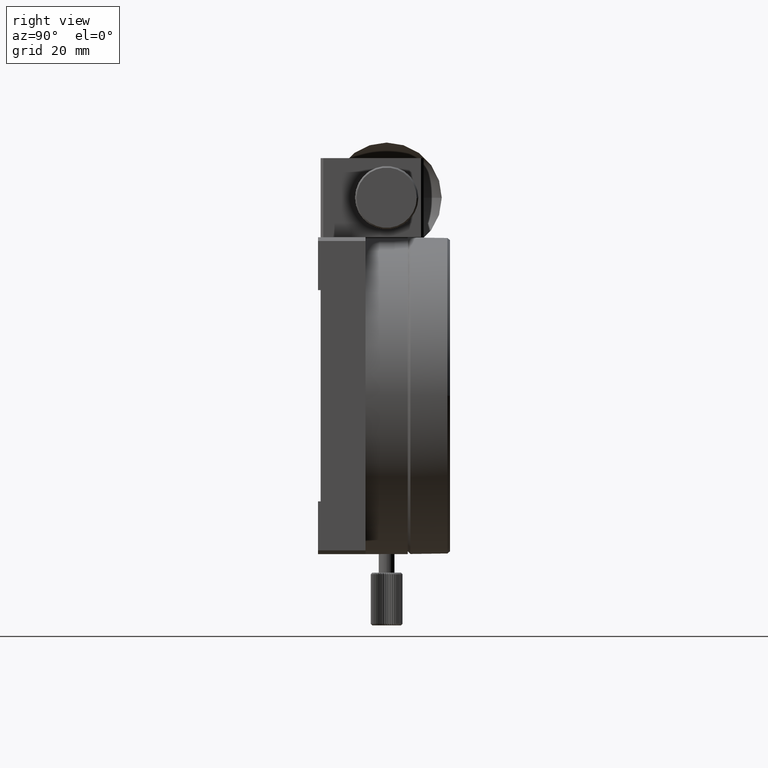
[diagram: clean part render]
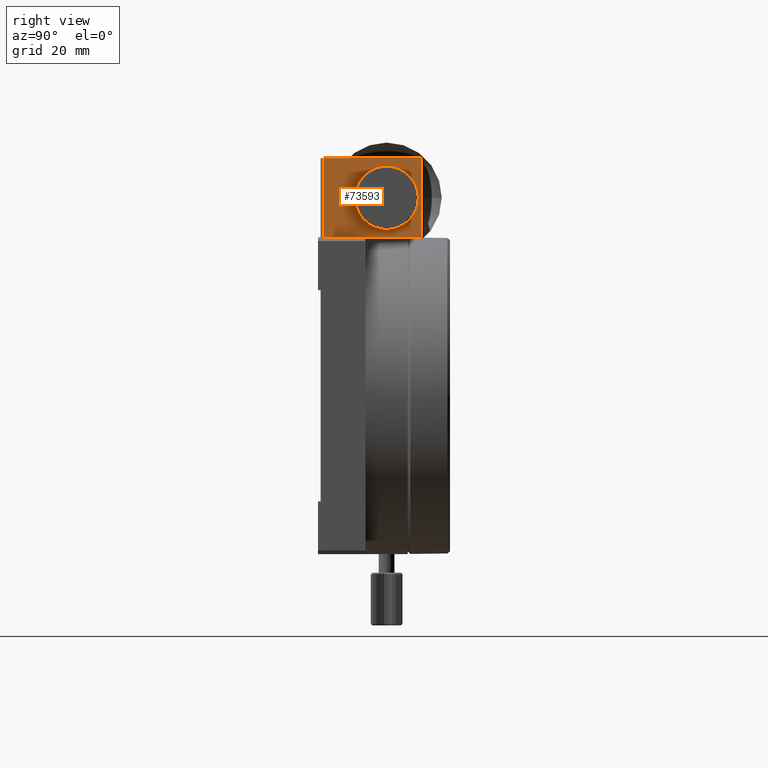
[diagram: same view with one face highlighted and labeled with its STEP entity id]
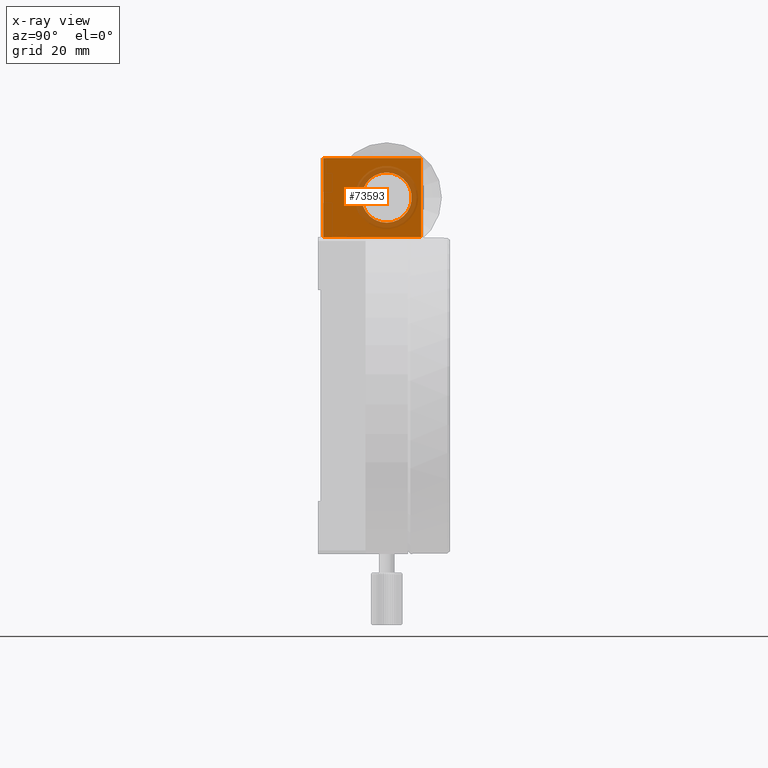
[diagram: x-ray of the same camera — body ghosted, the highlighted face saturated]
A machine part, right view. The second image highlights one B-rep face of the part: STEP entity #73593.
The next image is the same camera in x-ray: the body ghosted, the highlighted face saturated — about 20% of this face is hidden behind the body in this view.
In plain terms, the highlighted planar face has unit normal (-1, 0, 0).
Its self-contained STEP definition (entity closure, byte-faithful):
#237 = EDGE_CURVE ( 'NONE', #47978, #60277, #14985, .T. ) ;
#287 = ORIENTED_EDGE ( 'NONE', *, *, #237, .T. ) ;
#5360 = FACE_OUTER_BOUND ( 'NONE', #59711, .T. ) ;
#13822 = LINE ( 'NONE', #83446, #42437 ) ;
#14915 = LINE ( 'NONE', #50197, #46631 ) ;
#14985 = LINE ( 'NONE', #34995, #84955 ) ;
#15302 = EDGE_CURVE ( 'NONE', #33957, #47978, #14915, .T. ) ;
#16013 = CARTESIAN_POINT ( 'NONE',  ( 48.50000000000000000, 13.00000000000000178, 7.500000000000000000 ) ) ;
#19283 = DIRECTION ( 'NONE',  ( 0.000000000000000000, 0.000000000000000000, 1.000000000000000000 ) ) ;
#21228 = VERTEX_POINT ( 'NONE', #35631 ) ;
#24006 = LINE ( 'NONE', #36567, #51588 ) ;
#24529 = AXIS2_PLACEMENT_3D ( 'NONE', #40655, #90776, #19283 ) ;
#25157 = VERTEX_POINT ( 'NONE', #45331 ) ;
#28409 = EDGE_CURVE ( 'NONE', #25157, #60277, #54376, .T. ) ;
#32164 = EDGE_CURVE ( 'NONE', #21228, #21228, #82798, .T. ) ;
#32768 = CARTESIAN_POINT ( 'NONE',  ( 48.50000000000000711, 1.000000000000000444, 0.000000000000000000 ) ) ;
#33957 = VERTEX_POINT ( 'NONE', #87259 ) ;
#34995 = CARTESIAN_POINT ( 'NONE',  ( 48.50000000000000000, 9.000000000000001776, 0.000000000000000000 ) ) ;
#35631 = CARTESIAN_POINT ( 'NONE',  ( 48.50000000000000000, 13.00000000000000178, 2.750000000000000000 ) ) ;
#36026 = VERTEX_POINT ( 'NONE', #45670 ) ;
#36567 = CARTESIAN_POINT ( 'NONE',  ( 48.50000000000000000, 0.000000000000000000, 15.00000000000000000 ) ) ;
#39805 = AXIS2_PLACEMENT_3D ( 'NONE', #16013, #43433, #63864 ) ;
#40655 = CARTESIAN_POINT ( 'NONE',  ( 48.50000000000000000, 1.000000000000000000, 15.00000000000000000 ) ) ;
#41117 = FACE_BOUND ( 'NONE', #61754, .T. ) ;
#42437 = VECTOR ( 'NONE', #77845, 1000.000000000000000 ) ;
#43433 = DIRECTION ( 'NONE',  ( 1.000000000000000000, 0.000000000000000000, 0.000000000000000000 ) ) ;
#43533 = DIRECTION ( 'NONE',  ( -0.000000000000000000, 1.000000000000000000, 0.000000000000000000 ) ) ;
#43601 = EDGE_CURVE ( 'NONE', #33957, #36026, #24006, .T. ) ;
#45331 = CARTESIAN_POINT ( 'NONE',  ( 48.50000000000000711, 19.50000000000000000, 0.000000000000000000 ) ) ;
#45670 = CARTESIAN_POINT ( 'NONE',  ( 48.50000000000000711, 19.50000000000000000, 15.00000000000000000 ) ) ;
#46281 = ORIENTED_EDGE ( 'NONE', *, *, #28409, .F. ) ;
#46631 = VECTOR ( 'NONE', #85476, 1000.000000000000000 ) ;
#46807 = ORIENTED_EDGE ( 'NONE', *, *, #32164, .F. ) ;
#47137 = PLANE ( 'NONE',  #24529 ) ;
#47978 = VERTEX_POINT ( 'NONE', #32768 ) ;
#48728 = VECTOR ( 'NONE', #77082, 1000.000000000000000 ) ;
#50197 = CARTESIAN_POINT ( 'NONE',  ( 48.50000000000000000, 0.9999999999999995559, 15.00000000000000000 ) ) ;
#50488 = EDGE_CURVE ( 'NONE', #36026, #25157, #13822, .T. ) ;
#51588 = VECTOR ( 'NONE', #43533, 1000.000000000000000 ) ;
#53448 = CARTESIAN_POINT ( 'NONE',  ( 48.50000000000000000, 9.000000000000001776, 0.000000000000000000 ) ) ;
#53581 = ORIENTED_EDGE ( 'NONE', *, *, #43601, .F. ) ;
#54376 = LINE ( 'NONE', #61793, #48728 ) ;
#59711 = EDGE_LOOP ( 'NONE', ( #46281, #66148, #53581, #79762, #287 ) ) ;
#60277 = VERTEX_POINT ( 'NONE', #53448 ) ;
#61754 = EDGE_LOOP ( 'NONE', ( #46807 ) ) ;
#61793 = CARTESIAN_POINT ( 'NONE',  ( 48.50000000000000000, 1.000000000000000000, 0.000000000000000000 ) ) ;
#63864 = DIRECTION ( 'NONE',  ( 0.000000000000000000, 0.000000000000000000, -1.000000000000000000 ) ) ;
#66148 = ORIENTED_EDGE ( 'NONE', *, *, #50488, .F. ) ;
#73593 = ADVANCED_FACE ( 'NONE', ( #5360, #41117 ), #47137, .F. ) ;
#77082 = DIRECTION ( 'NONE',  ( -0.000000000000000000, -1.000000000000000000, 0.000000000000000000 ) ) ;
#77845 = DIRECTION ( 'NONE',  ( -0.000000000000000000, -0.000000000000000000, -1.000000000000000000 ) ) ;
#79762 = ORIENTED_EDGE ( 'NONE', *, *, #15302, .T. ) ;
#82798 = CIRCLE ( 'NONE', #39805, 4.750000000000000000 ) ;
#83446 = CARTESIAN_POINT ( 'NONE',  ( 48.50000000000000000, 19.50000000000000000, 15.00000000000000000 ) ) ;
#84955 = VECTOR ( 'NONE', #91597, 1000.000000000000000 ) ;
#85476 = DIRECTION ( 'NONE',  ( -0.000000000000000000, -0.000000000000000000, -1.000000000000000000 ) ) ;
#87259 = CARTESIAN_POINT ( 'NONE',  ( 48.50000000000000711, 0.9999999999999997780, 15.00000000000000000 ) ) ;
#90776 = DIRECTION ( 'NONE',  ( -1.000000000000000000, 0.000000000000000000, 0.000000000000000000 ) ) ;
#91597 = DIRECTION ( 'NONE',  ( 0.000000000000000000, 1.000000000000000000, 0.000000000000000000 ) ) ;